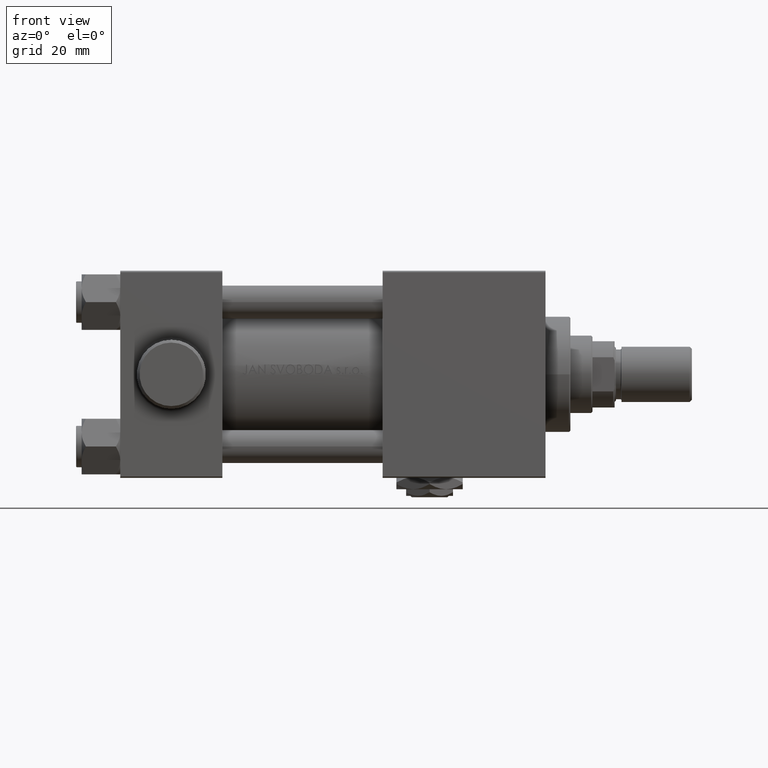
[diagram: clean part render]
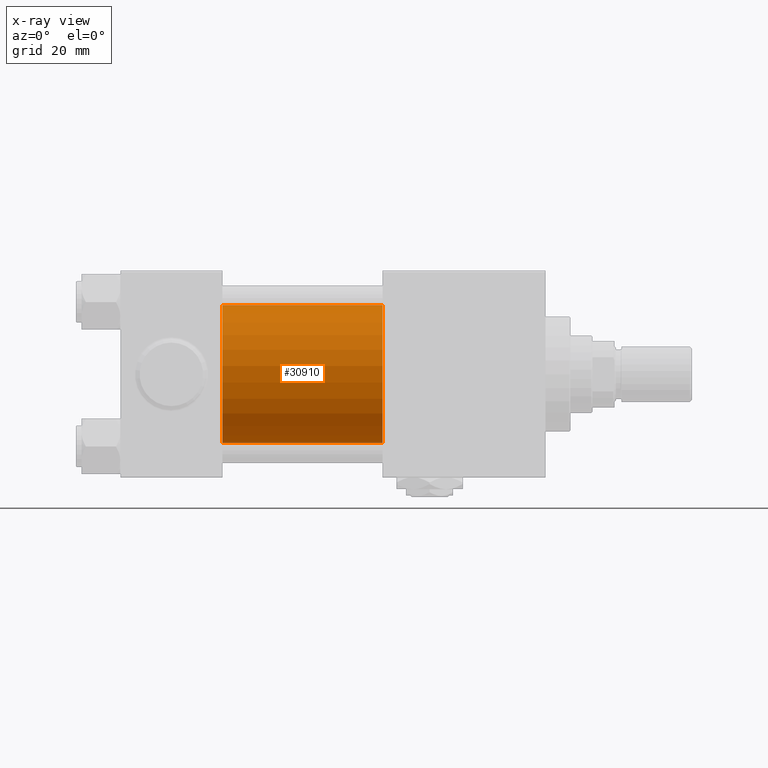
[diagram: x-ray — body ghosted, one internal face saturated and labeled with its STEP entity id]
A machine part, front view, then the same camera in x-ray: the body is ghosted and one INTERNAL B-rep face — a face not visible from any outside direction — is saturated and labeled: STEP entity #30910.
In plain terms, the highlighted cylindrical surface (partial cylindrical patch) has radius 25 mm, axis along (-1, -0, -0).
Its self-contained STEP definition (entity closure, byte-faithful):
#353 = EDGE_LOOP ( 'NONE', ( #28955, #7075, #2327, #2863 ) ) ;
#2327 = ORIENTED_EDGE ( 'NONE', *, *, #9611, .F. ) ;
#2863 = ORIENTED_EDGE ( 'NONE', *, *, #17171, .F. ) ;
#3075 = CARTESIAN_POINT ( 'NONE',  ( 95.00000000000000000, -3.469446951953614189E-15, 0.000000000000000000 ) ) ;
#3092 = DIRECTION ( 'NONE',  ( 1.000000000000000000, 0.000000000000000000, 0.000000000000000000 ) ) ;
#3457 = VERTEX_POINT ( 'NONE', #34535 ) ;
#3500 = DIRECTION ( 'NONE',  ( -1.000000000000000000, -0.000000000000000000, -0.000000000000000000 ) ) ;
#5675 = FACE_OUTER_BOUND ( 'NONE', #353, .T. ) ;
#6168 = DIRECTION ( 'NONE',  ( 0.000000000000000000, 0.000000000000000000, 1.000000000000000000 ) ) ;
#7075 = ORIENTED_EDGE ( 'NONE', *, *, #46790, .T. ) ;
#9611 = EDGE_CURVE ( 'NONE', #17919, #9638, #14465, .T. ) ;
#9638 = VERTEX_POINT ( 'NONE', #34548 ) ;
#10410 = DIRECTION ( 'NONE',  ( -1.000000000000000000, -0.000000000000000000, -0.000000000000000000 ) ) ;
#10569 = VECTOR ( 'NONE', #10410, 1000.000000000000000 ) ;
#10792 = CARTESIAN_POINT ( 'NONE',  ( 37.00000000000000000, -3.469446951953614189E-15, 0.000000000000000000 ) ) ;
#11064 = CIRCLE ( 'NONE', #35616, 25.00000000000000000 ) ;
#14465 = CIRCLE ( 'NONE', #42166, 25.00000000000000000 ) ;
#17085 = CYLINDRICAL_SURFACE ( 'NONE', #44895, 25.00000000000000000 ) ;
#17171 = EDGE_CURVE ( 'NONE', #37615, #17919, #26051, .T. ) ;
#17919 = VERTEX_POINT ( 'NONE', #25097 ) ;
#18222 = DIRECTION ( 'NONE',  ( 0.000000000000000000, 0.000000000000000000, -1.000000000000000000 ) ) ;
#21846 = CARTESIAN_POINT ( 'NONE',  ( 95.00000000000000000, -3.469446951953614189E-15, 25.00000000000000000 ) ) ;
#22147 = DIRECTION ( 'NONE',  ( 1.000000000000000000, 0.000000000000000000, 0.000000000000000000 ) ) ;
#24643 = CARTESIAN_POINT ( 'NONE',  ( 95.00000000000000000, -3.469446951953614189E-15, 25.00000000000000000 ) ) ;
#25097 = CARTESIAN_POINT ( 'NONE',  ( 37.00000000000000000, -3.469446951953614189E-15, 25.00000000000000000 ) ) ;
#25630 = DIRECTION ( 'NONE',  ( 0.000000000000000000, 0.000000000000000000, -1.000000000000000000 ) ) ;
#26051 = LINE ( 'NONE', #21846, #39882 ) ;
#28955 = ORIENTED_EDGE ( 'NONE', *, *, #39310, .T. ) ;
#30910 = ADVANCED_FACE ( 'NONE', ( #5675 ), #17085, .F. ) ;
#34535 = CARTESIAN_POINT ( 'NONE',  ( 95.00000000000000000, -4.078299540852317872E-16, -25.00000000000000000 ) ) ;
#34548 = CARTESIAN_POINT ( 'NONE',  ( 37.00000000000000000, -4.078299540852317872E-16, -25.00000000000000000 ) ) ;
#35616 = AXIS2_PLACEMENT_3D ( 'NONE', #3075, #22147, #25630 ) ;
#37615 = VERTEX_POINT ( 'NONE', #24643 ) ;
#39310 = EDGE_CURVE ( 'NONE', #37615, #3457, #11064, .T. ) ;
#39882 = VECTOR ( 'NONE', #3500, 1000.000000000000000 ) ;
#42166 = AXIS2_PLACEMENT_3D ( 'NONE', #10792, #3092, #18222 ) ;
#43590 = DIRECTION ( 'NONE',  ( -1.000000000000000000, -0.000000000000000000, -0.000000000000000000 ) ) ;
#44348 = LINE ( 'NONE', #44588, #10569 ) ;
#44588 = CARTESIAN_POINT ( 'NONE',  ( 95.00000000000000000, -4.078299540852317872E-16, -25.00000000000000000 ) ) ;
#44895 = AXIS2_PLACEMENT_3D ( 'NONE', #47303, #43590, #6168 ) ;
#46790 = EDGE_CURVE ( 'NONE', #3457, #9638, #44348, .T. ) ;
#47303 = CARTESIAN_POINT ( 'NONE',  ( 95.00000000000000000, -3.469446951953614189E-15, 0.000000000000000000 ) ) ;